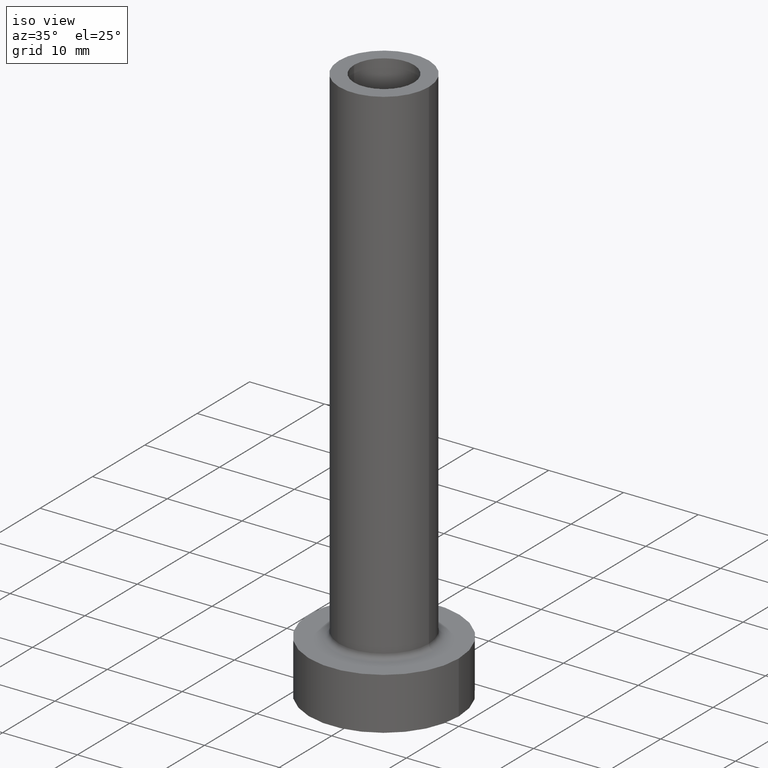
[diagram: clean part render]
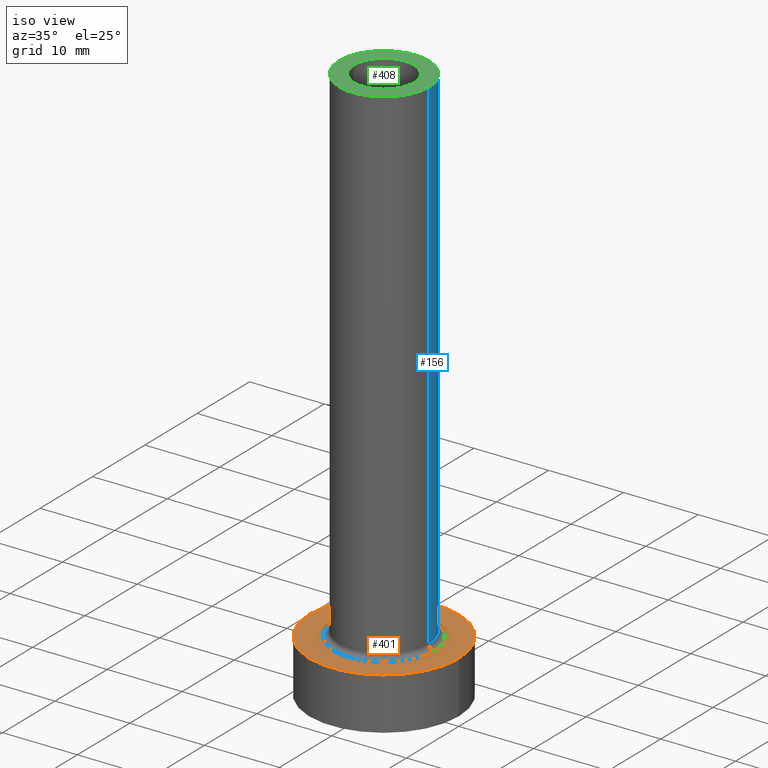
[diagram: same view with three faces highlighted in distinct colors, each labeled with its STEP entity id]
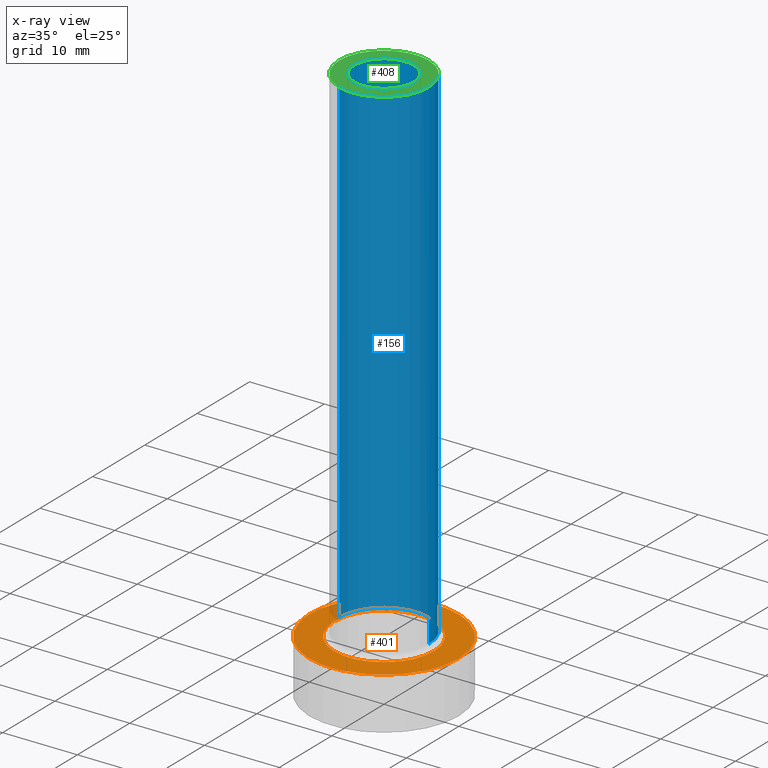
[diagram: x-ray of the same camera — body ghosted, the three highlighted faces saturated]
A machine part, iso view with three faces highlighted in distinct colors.
The next image is the same camera in x-ray (body ghosted, the three faces saturated) — at least one of them is partly hidden behind the body in this view.
Their STEP definitions:

[orange] entity #401 — the highlighted planar face has unit normal (0, 0, 1).
#2 = EDGE_CURVE ( 'NONE', #281, #367, #278, .T. ) ;
#7 = DIRECTION ( 'NONE',  ( 0.000000000000000000, 0.000000000000000000, 1.000000000000000000 ) ) ;
#54 = EDGE_CURVE ( 'NONE', #157, #244, #385, .T. ) ;
#72 = AXIS2_PLACEMENT_3D ( 'NONE', #395, #73, #346 ) ;
#73 = DIRECTION ( 'NONE',  ( -0.000000000000000000, -0.000000000000000000, -1.000000000000000000 ) ) ;
#90 = CARTESIAN_POINT ( 'NONE',  ( -10.00000000000000000, 0.000000000000000000, 7.000000000000000000 ) ) ;
#101 = AXIS2_PLACEMENT_3D ( 'NONE', #158, #304, #163 ) ;
#108 = CARTESIAN_POINT ( 'NONE',  ( 0.000000000000000000, 0.000000000000000000, 7.000000000000000000 ) ) ;
#122 = ORIENTED_EDGE ( 'NONE', *, *, #54, .T. ) ;
#135 = ORIENTED_EDGE ( 'NONE', *, *, #370, .T. ) ;
#150 = CIRCLE ( 'NONE', #427, 6.700000000000001066 ) ;
#157 = VERTEX_POINT ( 'NONE', #327 ) ;
#158 = CARTESIAN_POINT ( 'NONE',  ( 0.000000000000000000, 0.000000000000000000, 7.000000000000000000 ) ) ;
#163 = DIRECTION ( 'NONE',  ( 1.000000000000000000, 0.000000000000000000, 0.000000000000000000 ) ) ;
#169 = FACE_OUTER_BOUND ( 'NONE', #448, .T. ) ;
#178 = ORIENTED_EDGE ( 'NONE', *, *, #2, .T. ) ;
#181 = DIRECTION ( 'NONE',  ( 0.000000000000000000, 0.000000000000000000, 1.000000000000000000 ) ) ;
#205 = CARTESIAN_POINT ( 'NONE',  ( 0.000000000000000000, 0.000000000000000000, 7.000000000000000000 ) ) ;
#209 = EDGE_CURVE ( 'NONE', #244, #157, #254, .T. ) ;
#215 = FACE_BOUND ( 'NONE', #267, .T. ) ;
#226 = CARTESIAN_POINT ( 'NONE',  ( 0.000000000000000000, 0.000000000000000000, 7.000000000000000000 ) ) ;
#244 = VERTEX_POINT ( 'NONE', #90 ) ;
#250 = CARTESIAN_POINT ( 'NONE',  ( -6.700000000000001066, 8.205133554287267548E-16, 6.999999999999999112 ) ) ;
#254 = CIRCLE ( 'NONE', #101, 10.00000000000000000 ) ;
#267 = EDGE_LOOP ( 'NONE', ( #178, #135 ) ) ;
#268 = AXIS2_PLACEMENT_3D ( 'NONE', #108, #181, #399 ) ;
#276 = DIRECTION ( 'NONE',  ( -0.000000000000000000, -0.000000000000000000, -1.000000000000000000 ) ) ;
#278 = CIRCLE ( 'NONE', #72, 6.700000000000001066 ) ;
#281 = VERTEX_POINT ( 'NONE', #454 ) ;
#304 = DIRECTION ( 'NONE',  ( 0.000000000000000000, 0.000000000000000000, 1.000000000000000000 ) ) ;
#327 = CARTESIAN_POINT ( 'NONE',  ( 10.00000000000000000, 1.224646799147353256E-15, 7.000000000000000000 ) ) ;
#331 = PLANE ( 'NONE',  #268 ) ;
#336 = AXIS2_PLACEMENT_3D ( 'NONE', #226, #7, #363 ) ;
#346 = DIRECTION ( 'NONE',  ( 1.000000000000000000, 0.000000000000000000, 0.000000000000000000 ) ) ;
#363 = DIRECTION ( 'NONE',  ( 1.000000000000000000, 0.000000000000000000, 0.000000000000000000 ) ) ;
#367 = VERTEX_POINT ( 'NONE', #250 ) ;
#370 = EDGE_CURVE ( 'NONE', #367, #281, #150, .T. ) ;
#385 = CIRCLE ( 'NONE', #336, 10.00000000000000000 ) ;
#395 = CARTESIAN_POINT ( 'NONE',  ( 0.000000000000000000, 0.000000000000000000, 7.000000000000000000 ) ) ;
#399 = DIRECTION ( 'NONE',  ( 1.000000000000000000, 0.000000000000000000, -0.000000000000000000 ) ) ;
#401 = ADVANCED_FACE ( 'NONE', ( #215, #169 ), #331, .T. ) ;
#423 = DIRECTION ( 'NONE',  ( 1.000000000000000000, 0.000000000000000000, 0.000000000000000000 ) ) ;
#427 = AXIS2_PLACEMENT_3D ( 'NONE', #205, #276, #423 ) ;
#448 = EDGE_LOOP ( 'NONE', ( #459, #122 ) ) ;
#454 = CARTESIAN_POINT ( 'NONE',  ( 6.700000000000001066, 0.000000000000000000, 6.999999999999999112 ) ) ;
#459 = ORIENTED_EDGE ( 'NONE', *, *, #209, .T. ) ;

[blue] entity #156 — the highlighted cylindrical surface (partial cylindrical patch) has radius 6 mm, axis along (-0, -0, -1).
#8 = DIRECTION ( 'NONE',  ( -0.000000000000000000, -0.000000000000000000, -1.000000000000000000 ) ) ;
#21 = VERTEX_POINT ( 'NONE', #172 ) ;
#43 = CARTESIAN_POINT ( 'NONE',  ( -6.000000000000000888, 0.000000000000000000, 75.00000000000001421 ) ) ;
#44 = CARTESIAN_POINT ( 'NONE',  ( 6.000000000000000888, 7.347880794884120722E-16, 75.00000000000001421 ) ) ;
#60 = VECTOR ( 'NONE', #441, 1000.000000000000000 ) ;
#69 = VECTOR ( 'NONE', #323, 1000.000000000000000 ) ;
#77 = CARTESIAN_POINT ( 'NONE',  ( 0.000000000000000000, 0.000000000000000000, 75.00000000000001421 ) ) ;
#82 = LINE ( 'NONE', #43, #69 ) ;
#99 = VERTEX_POINT ( 'NONE', #324 ) ;
#110 = AXIS2_PLACEMENT_3D ( 'NONE', #77, #8, #223 ) ;
#145 = EDGE_CURVE ( 'NONE', #305, #444, #149, .T. ) ;
#149 = LINE ( 'NONE', #44, #60 ) ;
#156 = ADVANCED_FACE ( 'NONE', ( #257 ), #400, .T. ) ;
#172 = CARTESIAN_POINT ( 'NONE',  ( -6.000000000000000888, 0.000000000000000000, 75.00000000000001421 ) ) ;
#176 = CIRCLE ( 'NONE', #369, 6.000000000000000888 ) ;
#203 = CIRCLE ( 'NONE', #458, 6.000000000000000888 ) ;
#207 = CARTESIAN_POINT ( 'NONE',  ( 0.000000000000000000, 0.000000000000000000, 7.699999999999998401 ) ) ;
#217 = CARTESIAN_POINT ( 'NONE',  ( 0.000000000000000000, 0.000000000000000000, 75.00000000000001421 ) ) ;
#223 = DIRECTION ( 'NONE',  ( -1.000000000000000000, 0.000000000000000000, 0.000000000000000000 ) ) ;
#241 = ORIENTED_EDGE ( 'NONE', *, *, #383, .T. ) ;
#257 = FACE_OUTER_BOUND ( 'NONE', #310, .T. ) ;
#261 = DIRECTION ( 'NONE',  ( 0.000000000000000000, 0.000000000000000000, 1.000000000000000000 ) ) ;
#279 = DIRECTION ( 'NONE',  ( 1.000000000000000000, 0.000000000000000000, 0.000000000000000000 ) ) ;
#305 = VERTEX_POINT ( 'NONE', #460 ) ;
#310 = EDGE_LOOP ( 'NONE', ( #420, #413, #241, #392 ) ) ;
#323 = DIRECTION ( 'NONE',  ( -0.000000000000000000, -0.000000000000000000, -1.000000000000000000 ) ) ;
#324 = CARTESIAN_POINT ( 'NONE',  ( -6.000000000000000888, 0.000000000000000000, 7.699999999999998401 ) ) ;
#325 = DIRECTION ( 'NONE',  ( 1.000000000000000000, 0.000000000000000000, 0.000000000000000000 ) ) ;
#369 = AXIS2_PLACEMENT_3D ( 'NONE', #217, #261, #325 ) ;
#383 = EDGE_CURVE ( 'NONE', #444, #99, #203, .T. ) ;
#391 = DIRECTION ( 'NONE',  ( 0.000000000000000000, 0.000000000000000000, 1.000000000000000000 ) ) ;
#392 = ORIENTED_EDGE ( 'NONE', *, *, #433, .F. ) ;
#400 = CYLINDRICAL_SURFACE ( 'NONE', #110, 6.000000000000000888 ) ;
#413 = ORIENTED_EDGE ( 'NONE', *, *, #145, .T. ) ;
#420 = ORIENTED_EDGE ( 'NONE', *, *, #442, .F. ) ;
#433 = EDGE_CURVE ( 'NONE', #21, #99, #82, .T. ) ;
#440 = CARTESIAN_POINT ( 'NONE',  ( 6.000000000000000888, 7.347880794884120722E-16, 7.699999999999998401 ) ) ;
#441 = DIRECTION ( 'NONE',  ( -0.000000000000000000, -0.000000000000000000, -1.000000000000000000 ) ) ;
#442 = EDGE_CURVE ( 'NONE', #305, #21, #176, .T. ) ;
#444 = VERTEX_POINT ( 'NONE', #440 ) ;
#458 = AXIS2_PLACEMENT_3D ( 'NONE', #207, #391, #279 ) ;
#460 = CARTESIAN_POINT ( 'NONE',  ( 6.000000000000000888, 7.347880794884120722E-16, 75.00000000000001421 ) ) ;

[green] entity #408 — the highlighted planar face has unit normal (0, 0, 1).
#18 = ORIENTED_EDGE ( 'NONE', *, *, #160, .F. ) ;
#21 = VERTEX_POINT ( 'NONE', #172 ) ;
#29 = CIRCLE ( 'NONE', #436, 6.000000000000000888 ) ;
#30 = ORIENTED_EDGE ( 'NONE', *, *, #442, .T. ) ;
#41 = DIRECTION ( 'NONE',  ( 0.000000000000000000, 0.000000000000000000, 1.000000000000000000 ) ) ;
#55 = EDGE_LOOP ( 'NONE', ( #18, #351 ) ) ;
#68 = VERTEX_POINT ( 'NONE', #255 ) ;
#76 = DIRECTION ( 'NONE',  ( 0.000000000000000000, 0.000000000000000000, 1.000000000000000000 ) ) ;
#112 = DIRECTION ( 'NONE',  ( 1.000000000000000000, 0.000000000000000000, 0.000000000000000000 ) ) ;
#113 = FACE_BOUND ( 'NONE', #55, .T. ) ;
#125 = AXIS2_PLACEMENT_3D ( 'NONE', #188, #153, #112 ) ;
#132 = EDGE_CURVE ( 'NONE', #21, #305, #29, .T. ) ;
#138 = EDGE_CURVE ( 'NONE', #68, #197, #287, .T. ) ;
#153 = DIRECTION ( 'NONE',  ( 0.000000000000000000, 0.000000000000000000, 1.000000000000000000 ) ) ;
#160 = EDGE_CURVE ( 'NONE', #197, #68, #282, .T. ) ;
#167 = EDGE_LOOP ( 'NONE', ( #342, #30 ) ) ;
#172 = CARTESIAN_POINT ( 'NONE',  ( -6.000000000000000888, 0.000000000000000000, 75.00000000000001421 ) ) ;
#176 = CIRCLE ( 'NONE', #369, 6.000000000000000888 ) ;
#187 = CARTESIAN_POINT ( 'NONE',  ( 0.000000000000000000, 0.000000000000000000, 75.00000000000001421 ) ) ;
#188 = CARTESIAN_POINT ( 'NONE',  ( 0.000000000000000000, 0.000000000000000000, 75.00000000000001421 ) ) ;
#197 = VERTEX_POINT ( 'NONE', #417 ) ;
#217 = CARTESIAN_POINT ( 'NONE',  ( 0.000000000000000000, 0.000000000000000000, 75.00000000000001421 ) ) ;
#218 = AXIS2_PLACEMENT_3D ( 'NONE', #357, #334, #307 ) ;
#220 = DIRECTION ( 'NONE',  ( 1.000000000000000000, 0.000000000000000000, 0.000000000000000000 ) ) ;
#222 = PLANE ( 'NONE',  #380 ) ;
#255 = CARTESIAN_POINT ( 'NONE',  ( 4.000000000000000000, 4.898587196589411843E-16, 75.00000000000001421 ) ) ;
#261 = DIRECTION ( 'NONE',  ( 0.000000000000000000, 0.000000000000000000, 1.000000000000000000 ) ) ;
#282 = CIRCLE ( 'NONE', #218, 4.000000000000000000 ) ;
#287 = CIRCLE ( 'NONE', #125, 4.000000000000000000 ) ;
#292 = FACE_OUTER_BOUND ( 'NONE', #167, .T. ) ;
#305 = VERTEX_POINT ( 'NONE', #460 ) ;
#307 = DIRECTION ( 'NONE',  ( 1.000000000000000000, 0.000000000000000000, 0.000000000000000000 ) ) ;
#325 = DIRECTION ( 'NONE',  ( 1.000000000000000000, 0.000000000000000000, 0.000000000000000000 ) ) ;
#334 = DIRECTION ( 'NONE',  ( 0.000000000000000000, 0.000000000000000000, 1.000000000000000000 ) ) ;
#342 = ORIENTED_EDGE ( 'NONE', *, *, #132, .T. ) ;
#351 = ORIENTED_EDGE ( 'NONE', *, *, #138, .F. ) ;
#354 = DIRECTION ( 'NONE',  ( 1.000000000000000000, 0.000000000000000000, -0.000000000000000000 ) ) ;
#357 = CARTESIAN_POINT ( 'NONE',  ( 0.000000000000000000, 0.000000000000000000, 75.00000000000001421 ) ) ;
#361 = CARTESIAN_POINT ( 'NONE',  ( 0.000000000000000000, 0.000000000000000000, 75.00000000000001421 ) ) ;
#369 = AXIS2_PLACEMENT_3D ( 'NONE', #217, #261, #325 ) ;
#380 = AXIS2_PLACEMENT_3D ( 'NONE', #187, #41, #354 ) ;
#408 = ADVANCED_FACE ( 'NONE', ( #113, #292 ), #222, .T. ) ;
#417 = CARTESIAN_POINT ( 'NONE',  ( -4.000000000000000000, 0.000000000000000000, 75.00000000000001421 ) ) ;
#436 = AXIS2_PLACEMENT_3D ( 'NONE', #361, #76, #220 ) ;
#442 = EDGE_CURVE ( 'NONE', #305, #21, #176, .T. ) ;
#460 = CARTESIAN_POINT ( 'NONE',  ( 6.000000000000000888, 7.347880794884120722E-16, 75.00000000000001421 ) ) ;